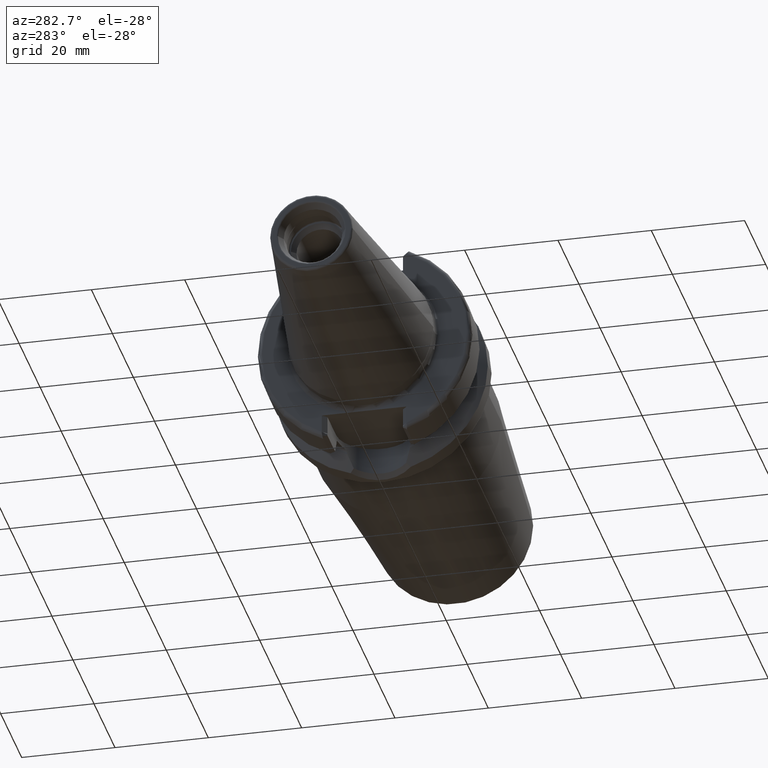
[diagram: clean part render]
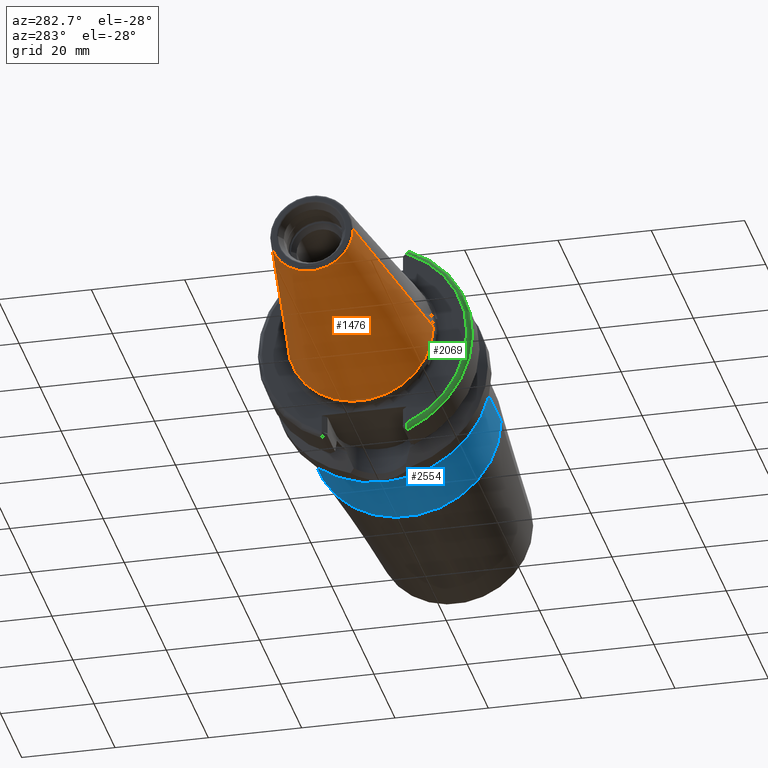
[diagram: same view with three faces highlighted in distinct colors, each labeled with its STEP entity id]
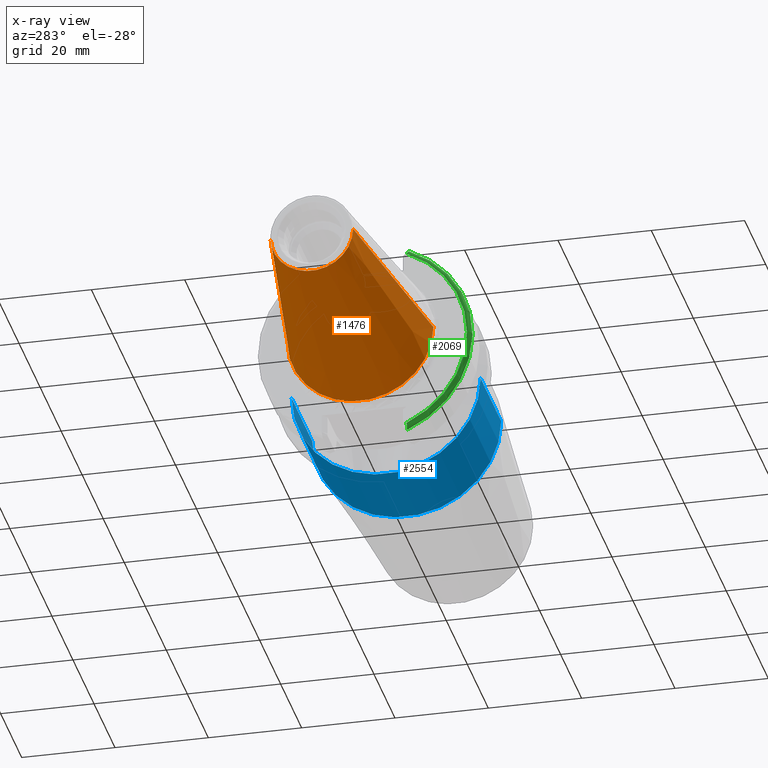
[diagram: x-ray of the same camera — body ghosted, the three highlighted faces saturated]
A machine part, auxiliary view with three faces highlighted in distinct colors.
The next image is the same camera in x-ray (body ghosted, the three faces saturated) — at least one of them is partly hidden behind the body in this view.
Their STEP definitions:

[orange] entity #1476 — the highlighted conical surface has half-angle 8.298 deg.
#32=CARTESIAN_POINT('',(-4.797215933459E1,0.E0,0.E0));
#33=DIRECTION('',(-1.E0,0.E0,0.E0));
#34=DIRECTION('',(0.E0,1.E0,0.E0));
#35=AXIS2_PLACEMENT_3D('',#32,#33,#34);
#47=DIRECTION('',(-9.895312636440E-1,-1.443186691705E-1,0.E0));
#48=VECTOR('',#47,4.683321324594E1);
#49=CARTESIAN_POINT('',(-1.629230650827E0,1.563738406209E1,0.E0));
#50=LINE('',#49,#48);
#51=DIRECTION('',(-9.895312636440E-1,1.443186691705E-1,0.E0));
#52=VECTOR('',#51,4.683321324594E1);
#53=CARTESIAN_POINT('',(-1.629230650827E0,-1.563738406209E1,0.E0));
#54=LINE('',#53,#52);
#55=CARTESIAN_POINT('',(-1.629230650827E0,0.E0,0.E0));
#56=DIRECTION('',(-1.E0,0.E0,0.E0));
#57=DIRECTION('',(0.E0,1.E0,0.E0));
#58=AXIS2_PLACEMENT_3D('',#55,#56,#57);
#1156=CARTESIAN_POINT('',(-4.797215933459E1,8.878477053461E0,0.E0));
#1158=VERTEX_POINT('',#1156);
#1160=CARTESIAN_POINT('',(-4.797215933459E1,-8.878477053461E0,0.E0));
#1162=VERTEX_POINT('',#1160);
#1371=CARTESIAN_POINT('',(-1.629230650827E0,1.563738406209E1,0.E0));
#1372=VERTEX_POINT('',#1371);
#1373=CARTESIAN_POINT('',(-1.629230650827E0,-1.563738406209E1,0.E0));
#1374=VERTEX_POINT('',#1373);
#1464=CARTESIAN_POINT('',(-2.480069499271E1,0.E0,0.E0));
#1465=DIRECTION('',(1.E0,0.E0,0.E0));
#1466=DIRECTION('',(0.E0,-1.E0,0.E0));
#1467=AXIS2_PLACEMENT_3D('',#1464,#1465,#1466);
#1468=CONICAL_SURFACE('',#1467,1.225793055778E1,8.297826828206E0);
#1469=ORIENTED_EDGE('',*,*,#1454,.T.);
#1470=ORIENTED_EDGE('',*,*,#1431,.T.);
#1471=ORIENTED_EDGE('',*,*,#1458,.F.);
#1473=ORIENTED_EDGE('',*,*,#1472,.F.);
#1474=EDGE_LOOP('',(#1469,#1470,#1471,#1473));
#1475=FACE_OUTER_BOUND('',#1474,.F.);
#1476=ADVANCED_FACE('',(#1475),#1468,.T.);
#36=CIRCLE('',#35,8.878477053461E0);
#59=CIRCLE('',#58,1.563738406209E1);
#1431=EDGE_CURVE('',#1158,#1162,#36,.T.);
#1454=EDGE_CURVE('',#1372,#1158,#50,.T.);
#1458=EDGE_CURVE('',#1374,#1162,#54,.T.);
#1472=EDGE_CURVE('',#1372,#1374,#59,.T.);

[blue] entity #2554 — the highlighted cylindrical surface (partial cylindrical patch) has radius 20.25 mm, axis along (1, 0, 0).
#852=CARTESIAN_POINT('',(2.28E1,0.E0,0.E0));
#853=DIRECTION('',(1.E0,0.E0,0.E0));
#854=DIRECTION('',(0.E0,-1.E0,0.E0));
#855=AXIS2_PLACEMENT_3D('',#852,#853,#854);
#857=DIRECTION('',(-1.E0,0.E0,-6.424230792694E-14));
#858=VECTOR('',#857,1.955173223934E1);
#859=CARTESIAN_POINT('',(4.235173223934E1,-2.025E1,0.E0));
#860=LINE('',#859,#858);
#861=CARTESIAN_POINT('',(4.235173223934E1,0.E0,0.E0));
#862=DIRECTION('',(-1.E0,0.E0,0.E0));
#863=DIRECTION('',(0.E0,1.E0,0.E0));
#864=AXIS2_PLACEMENT_3D('',#861,#862,#863);
#866=DIRECTION('',(-1.E0,0.E0,6.398133345974E-14));
#867=VECTOR('',#866,1.955173223934E1);
#868=CARTESIAN_POINT('',(4.235173223934E1,2.025E1,0.E0));
#869=LINE('',#868,#867);
#1383=CARTESIAN_POINT('',(4.235173223934E1,2.025E1,0.E0));
#1384=CARTESIAN_POINT('',(4.235173223934E1,-2.025E1,0.E0));
#1385=VERTEX_POINT('',#1383);
#1386=VERTEX_POINT('',#1384);
#1391=CARTESIAN_POINT('',(2.28E1,-2.025E1,0.E0));
#1392=CARTESIAN_POINT('',(2.28E1,2.025E1,0.E0));
#1393=VERTEX_POINT('',#1391);
#1394=VERTEX_POINT('',#1392);
#2542=CARTESIAN_POINT('',(1.86E1,0.E0,0.E0));
#2543=DIRECTION('',(1.E0,0.E0,0.E0));
#2544=DIRECTION('',(0.E0,-1.E0,0.E0));
#2545=AXIS2_PLACEMENT_3D('',#2542,#2543,#2544);
#2546=CYLINDRICAL_SURFACE('',#2545,2.025E1);
#2547=ORIENTED_EDGE('',*,*,#2507,.F.);
#2548=ORIENTED_EDGE('',*,*,#2537,.F.);
#2550=ORIENTED_EDGE('',*,*,#2549,.F.);
#2551=ORIENTED_EDGE('',*,*,#2533,.T.);
#2552=EDGE_LOOP('',(#2547,#2548,#2550,#2551));
#2553=FACE_OUTER_BOUND('',#2552,.F.);
#2554=ADVANCED_FACE('',(#2553),#2546,.T.);
#856=CIRCLE('',#855,2.025E1);
#865=CIRCLE('',#864,2.025E1);
#2507=EDGE_CURVE('',#1393,#1394,#856,.T.);
#2533=EDGE_CURVE('',#1385,#1394,#869,.T.);
#2537=EDGE_CURVE('',#1386,#1393,#860,.T.);
#2549=EDGE_CURVE('',#1385,#1386,#865,.T.);

[green] entity #2069 — the highlighted toroidal blend (fillet) surface has major radius 21.99 mm and minor (blend) radius 1 mm.
#199=CARTESIAN_POINT('',(3.E0,0.E0,0.E0));
#200=DIRECTION('',(-1.E0,0.E0,0.E0));
#201=DIRECTION('',(0.E0,-3.921232146517E-1,-9.199127048428E-1));
#202=AXIS2_PLACEMENT_3D('',#199,#200,#201);
#603=CARTESIAN_POINT('',(1.999981632272E0,-9.094981630699E0,-2.002101423182E1));
#604=CARTESIAN_POINT('',(1.999981632272E0,-9.095135000913E0,-2.009973987001E1));
#605=CARTESIAN_POINT('',(2.015160945499E0,-9.092440013760E0,-2.026137427148E1));
#606=CARTESIAN_POINT('',(2.092087566475E0,-9.080100772535E0,-2.051147418013E1));
#607=CARTESIAN_POINT('',(2.221538303973E0,-9.062314818954E0,-2.073904340005E1));
#608=CARTESIAN_POINT('',(2.392094966935E0,-9.042998101945E0,-2.092484818033E1));
#609=CARTESIAN_POINT('',(2.588906338275E0,-9.027264868146E0,-2.105716666242E1));
#610=CARTESIAN_POINT('',(2.795803887151E0,-9.016909789050E0,-2.113328869981E1));
#611=CARTESIAN_POINT('',(2.933097251829E0,-9.014825251737E0,-2.114881813308E1));
#612=CARTESIAN_POINT('',(2.999999972701E0,-9.014923952472E0,-2.114877606078E1));
#614=CARTESIAN_POINT('',(2.E0,0.E0,0.E0));
#615=DIRECTION('',(-1.E0,0.E0,0.E0));
#616=DIRECTION('',(0.E0,-4.135972017393E-1,-9.104599687594E-1));
#617=AXIS2_PLACEMENT_3D('',#614,#615,#616);
#619=CARTESIAN_POINT('',(3.E0,-9.095023821283E0,2.002100501199E1));
#620=DIRECTION('',(0.E0,-9.104595276032E-1,-4.135981728642E-1));
#621=DIRECTION('',(0.E0,-4.135981728642E-1,9.104595276032E-1));
#622=AXIS2_PLACEMENT_3D('',#619,#620,#621);
#1334=CARTESIAN_POINT('',(1.999971790894E0,-9.094971783867E0,2.002102625535E1));
#1336=VERTEX_POINT('',#1334);
#1338=CARTESIAN_POINT('',(3.E0,-9.508621994147E0,2.093146453960E1));
#1339=VERTEX_POINT('',#1338);
#1359=VERTEX_POINT('',#603);
#1360=VERTEX_POINT('',#612);
#2057=CARTESIAN_POINT('',(3.E0,0.E0,0.E0));
#2058=DIRECTION('',(1.E0,0.E0,0.E0));
#2059=DIRECTION('',(0.E0,-1.E0,0.E0));
#2060=AXIS2_PLACEMENT_3D('',#2057,#2058,#2059);
#2061=TOROIDAL_SURFACE('',#2060,2.199E1,1.E0);
#2063=ORIENTED_EDGE('',*,*,#2062,.F.);
#2064=ORIENTED_EDGE('',*,*,#1589,.T.);
#2065=ORIENTED_EDGE('',*,*,#2035,.F.);
#2066=ORIENTED_EDGE('',*,*,#1683,.F.);
#2067=EDGE_LOOP('',(#2063,#2064,#2065,#2066));
#2068=FACE_OUTER_BOUND('',#2067,.F.);
#2069=ADVANCED_FACE('',(#2068),#2061,.T.);
#203=CIRCLE('',#202,2.299E1);
#613=B_SPLINE_CURVE_WITH_KNOTS('',3,(#603,#604,#605,#606,#607,#608,#609,#610,
#611,#612),.UNSPECIFIED.,.F.,.F.,(4,1,1,1,1,1,1,4),(0.E0,1.428571428571E-1,
2.857142857143E-1,4.285714285714E-1,5.714285714286E-1,7.142857142857E-1,
8.571428571429E-1,1.E0),.UNSPECIFIED.);
#618=CIRCLE('',#617,2.199E1);
#623=CIRCLE('',#622,1.E0);
#1589=EDGE_CURVE('',#1359,#1336,#618,.T.);
#1683=EDGE_CURVE('',#1360,#1339,#203,.T.);
#2035=EDGE_CURVE('',#1339,#1336,#623,.T.);
#2062=EDGE_CURVE('',#1359,#1360,#613,.T.);